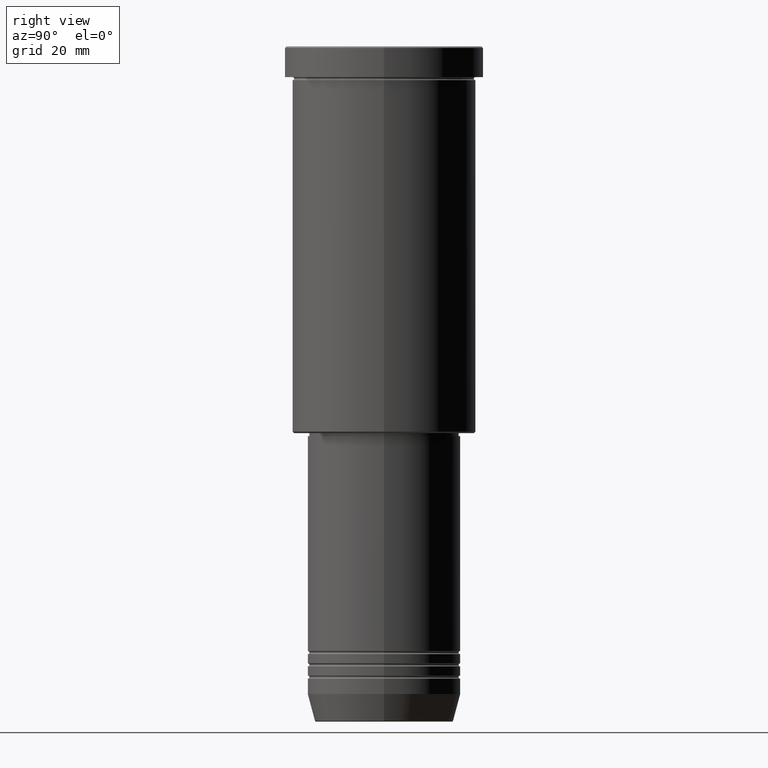
[diagram: clean part render]
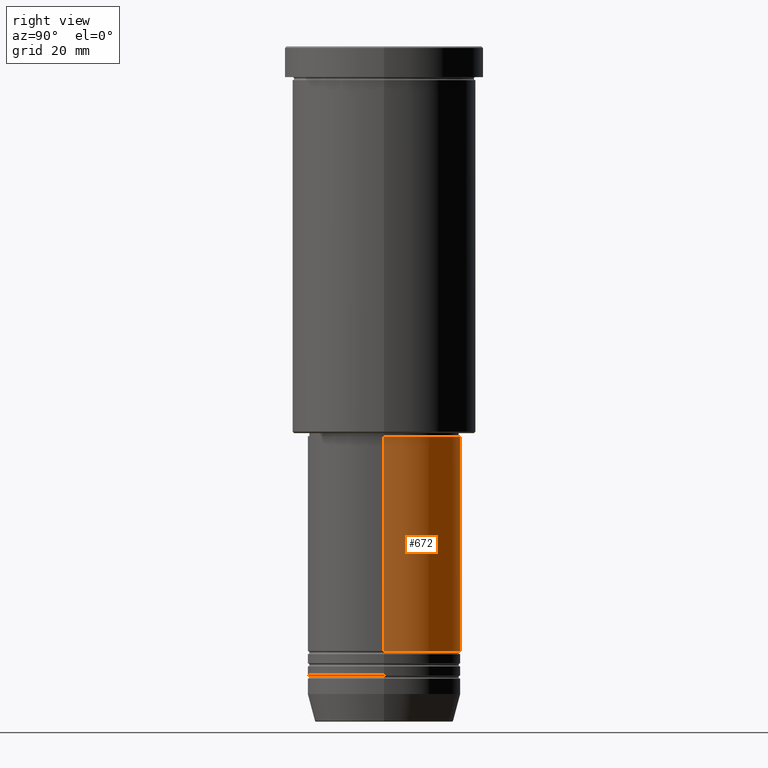
[diagram: same view with one face highlighted and labeled with its STEP entity id]
A machine part, right view. The second image highlights one B-rep face of the part: STEP entity #672.
In plain terms, the highlighted cylindrical surface (partial cylindrical patch) has radius 25 mm, axis along (-0, -0, 1).
Its self-contained STEP definition (entity closure, byte-faithful):
#1 = EDGE_CURVE ( 'NONE', #817, #317, #154, .T. ) ;
#14 = EDGE_CURVE ( 'NONE', #611, #147, #451, .T. ) ;
#34 = CYLINDRICAL_SURFACE ( 'NONE', #938, 25.00000000000000355 ) ;
#64 = DIRECTION ( 'NONE',  ( -0.000000000000000000, -0.000000000000000000, 1.000000000000000000 ) ) ;
#147 = VERTEX_POINT ( 'NONE', #942 ) ;
#154 = LINE ( 'NONE', #876, #561 ) ;
#172 = DIRECTION ( 'NONE',  ( 1.000000000000000000, 0.000000000000000000, 0.000000000000000000 ) ) ;
#185 = CARTESIAN_POINT ( 'NONE',  ( 25.00000000000000355, 0.000000000000000000, 0.000000000000000000 ) ) ;
#201 = ORIENTED_EDGE ( 'NONE', *, *, #425, .T. ) ;
#217 = AXIS2_PLACEMENT_3D ( 'NONE', #1073, #717, #172 ) ;
#279 = DIRECTION ( 'NONE',  ( -0.000000000000000000, -0.000000000000000000, 1.000000000000000000 ) ) ;
#317 = VERTEX_POINT ( 'NONE', #694 ) ;
#327 = DIRECTION ( 'NONE',  ( -0.000000000000000000, -0.000000000000000000, 1.000000000000000000 ) ) ;
#375 = DIRECTION ( 'NONE',  ( -0.000000000000000000, -0.000000000000000000, 1.000000000000000000 ) ) ;
#390 = FACE_OUTER_BOUND ( 'NONE', #592, .T. ) ;
#422 = ORIENTED_EDGE ( 'NONE', *, *, #832, .F. ) ;
#425 = EDGE_CURVE ( 'NONE', #611, #817, #1078, .T. ) ;
#451 = LINE ( 'NONE', #185, #1148 ) ;
#493 = CARTESIAN_POINT ( 'NONE',  ( 0.000000000000000000, 0.000000000000000000, -127.0000000000000000 ) ) ;
#495 = ORIENTED_EDGE ( 'NONE', *, *, #1, .T. ) ;
#561 = VECTOR ( 'NONE', #64, 1000.000000000000000 ) ;
#592 = EDGE_LOOP ( 'NONE', ( #201, #495, #422, #1140 ) ) ;
#601 = AXIS2_PLACEMENT_3D ( 'NONE', #493, #327, #1039 ) ;
#611 = VERTEX_POINT ( 'NONE', #914 ) ;
#670 = CARTESIAN_POINT ( 'NONE',  ( 0.000000000000000000, 0.000000000000000000, 0.000000000000000000 ) ) ;
#672 = ADVANCED_FACE ( 'NONE', ( #390 ), #34, .T. ) ;
#694 = CARTESIAN_POINT ( 'NONE',  ( -25.00000000000001066, 3.061616997868384226E-15, -127.0000000000000000 ) ) ;
#717 = DIRECTION ( 'NONE',  ( -0.000000000000000000, -0.000000000000000000, 1.000000000000000000 ) ) ;
#817 = VERTEX_POINT ( 'NONE', #1145 ) ;
#832 = EDGE_CURVE ( 'NONE', #147, #317, #995, .T. ) ;
#876 = CARTESIAN_POINT ( 'NONE',  ( -25.00000000000000355, 3.061616997868383437E-15, 0.000000000000000000 ) ) ;
#914 = CARTESIAN_POINT ( 'NONE',  ( 25.00000000000000000, 0.000000000000000000, -196.9999999999999716 ) ) ;
#938 = AXIS2_PLACEMENT_3D ( 'NONE', #670, #279, #1023 ) ;
#942 = CARTESIAN_POINT ( 'NONE',  ( 25.00000000000000711, 0.000000000000000000, -127.0000000000000000 ) ) ;
#995 = CIRCLE ( 'NONE', #601, 25.00000000000000711 ) ;
#1023 = DIRECTION ( 'NONE',  ( 1.000000000000000000, 0.000000000000000000, 0.000000000000000000 ) ) ;
#1039 = DIRECTION ( 'NONE',  ( 1.000000000000000000, 0.000000000000000000, 0.000000000000000000 ) ) ;
#1073 = CARTESIAN_POINT ( 'NONE',  ( 0.000000000000000000, 0.000000000000000000, -196.9999999999999716 ) ) ;
#1078 = CIRCLE ( 'NONE', #217, 25.00000000000000000 ) ;
#1140 = ORIENTED_EDGE ( 'NONE', *, *, #14, .F. ) ;
#1145 = CARTESIAN_POINT ( 'NONE',  ( -25.00000000000000000, 3.061616997868383437E-15, -196.9999999999999716 ) ) ;
#1148 = VECTOR ( 'NONE', #375, 1000.000000000000000 ) ;